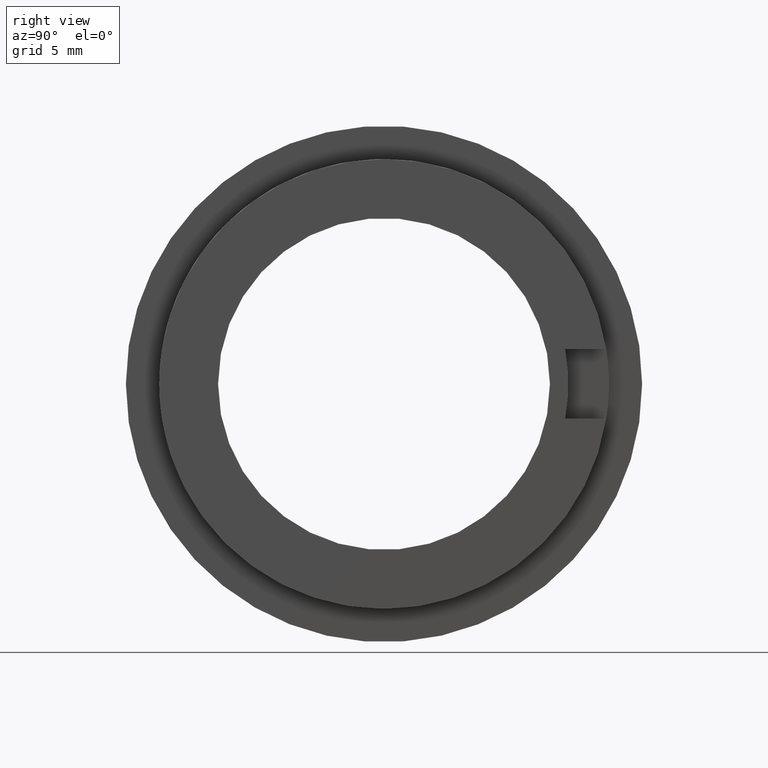
[diagram: clean part render]
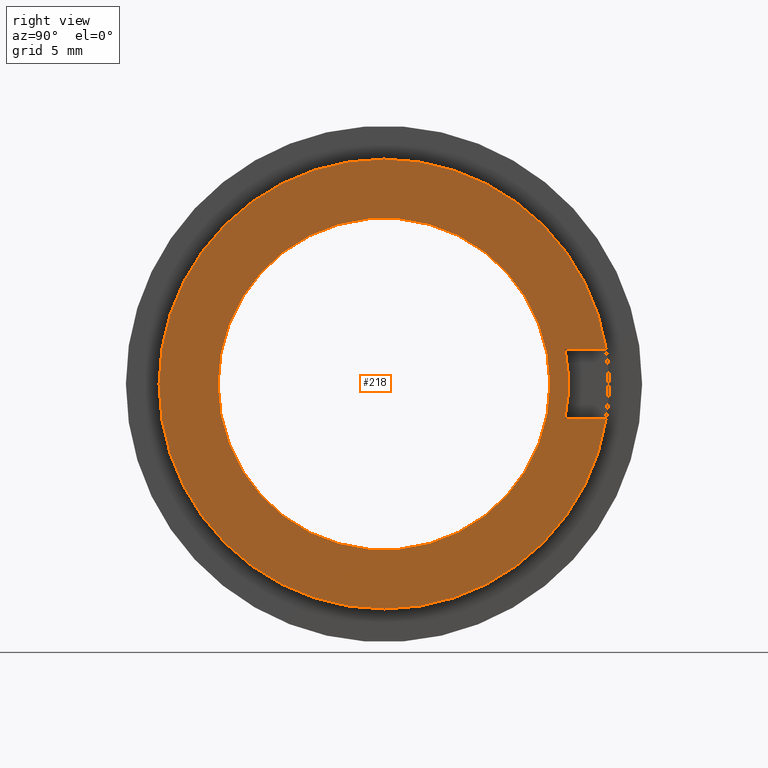
[diagram: same view with one face highlighted and labeled with its STEP entity id]
A machine part, right view. The second image highlights one B-rep face of the part: STEP entity #218.
In plain terms, the highlighted planar face has unit normal (1, 0, 0).
Its self-contained STEP definition (entity closure, byte-faithful):
#84=CARTESIAN_POINT('',(-2.322580550947496,16.930337949835174,2.350000000000001));
#85=VERTEX_POINT('',#84);
#92=CARTESIAN_POINT('',(-2.322580550947496,16.930337949835174,-2.349999999999998));
#93=VERTEX_POINT('',#92);
#94=CARTESIAN_POINT('',(-2.322580550947496,4.653225097050933,0.0));
#95=DIRECTION('',(1.0,0.0,0.0));
#96=DIRECTION('',(0.0,-0.982169028222739,0.188000000000000));
#97=AXIS2_PLACEMENT_3D('',#94,#95,#96);
#98=CIRCLE('',#97,12.500000000000000);
#99=EDGE_CURVE('',#93,#85,#98,.T.);
#124=CARTESIAN_POINT('',(-2.322580550947496,19.721071658520824,-2.349999999999998));
#125=VERTEX_POINT('',#124);
#126=CARTESIAN_POINT('',(-2.322580550947496,19.721071658520824,-2.349999999999998));
#127=DIRECTION('',(0.0,-1.0,0.0));
#128=VECTOR('',#127,2.790733708685650);
#129=LINE('',#126,#128);
#130=EDGE_CURVE('',#125,#93,#129,.T.);
#154=CARTESIAN_POINT('',(-2.322580550947496,19.721071658520824,2.350000000000002));
#155=VERTEX_POINT('',#154);
#162=CARTESIAN_POINT('',(-2.322580550947496,16.930337949835174,2.350000000000001));
#163=DIRECTION('',(0.0,1.0,0.0));
#164=VECTOR('',#163,2.790733708685650);
#165=LINE('',#162,#164);
#166=EDGE_CURVE('',#85,#155,#165,.T.);
#190=CARTESIAN_POINT('',(-2.322580550947496,17.903225097050935,0.0));
#191=DIRECTION('',(1.0,0.0,0.0));
#192=DIRECTION('',(0.0,0.0,-1.0));
#193=AXIS2_PLACEMENT_3D('',#190,#191,#192);
#194=PLANE('',#193);
#195=ORIENTED_EDGE('',*,*,#130,.T.);
#196=ORIENTED_EDGE('',*,*,#99,.T.);
#197=ORIENTED_EDGE('',*,*,#166,.T.);
#198=CARTESIAN_POINT('',(-2.322580550947497,4.653225097050933,0.0));
#199=DIRECTION('',(1.0,0.0,0.0));
#200=DIRECTION('',(0.0,1.0,0.0));
#201=AXIS2_PLACEMENT_3D('',#198,#199,#200);
#202=CIRCLE('',#201,15.250000000000002);
#203=EDGE_CURVE('',#155,#125,#202,.T.);
#204=ORIENTED_EDGE('',*,*,#203,.T.);
#205=EDGE_LOOP('',(#195,#196,#197,#204));
#206=FACE_OUTER_BOUND('',#205,.T.);
#207=CARTESIAN_POINT('',(-2.322580550947495,15.903225097050932,0.0));
#208=VERTEX_POINT('',#207);
#209=CARTESIAN_POINT('',(-2.322580550947495,4.653225097050933,0.0));
#210=DIRECTION('',(1.0,0.0,0.0));
#211=DIRECTION('',(0.0,1.0,0.0));
#212=AXIS2_PLACEMENT_3D('',#209,#210,#211);
#213=CIRCLE('',#212,11.250000000000000);
#214=EDGE_CURVE('',#208,#208,#213,.T.);
#215=ORIENTED_EDGE('',*,*,#214,.F.);
#216=EDGE_LOOP('',(#215));
#217=FACE_BOUND('',#216,.T.);
#218=ADVANCED_FACE('',(#206,#217),#194,.T.);